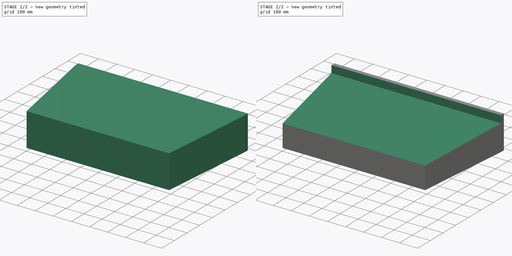
[diagram: build sequence overview — one tinted view per stage of 2, left to right]
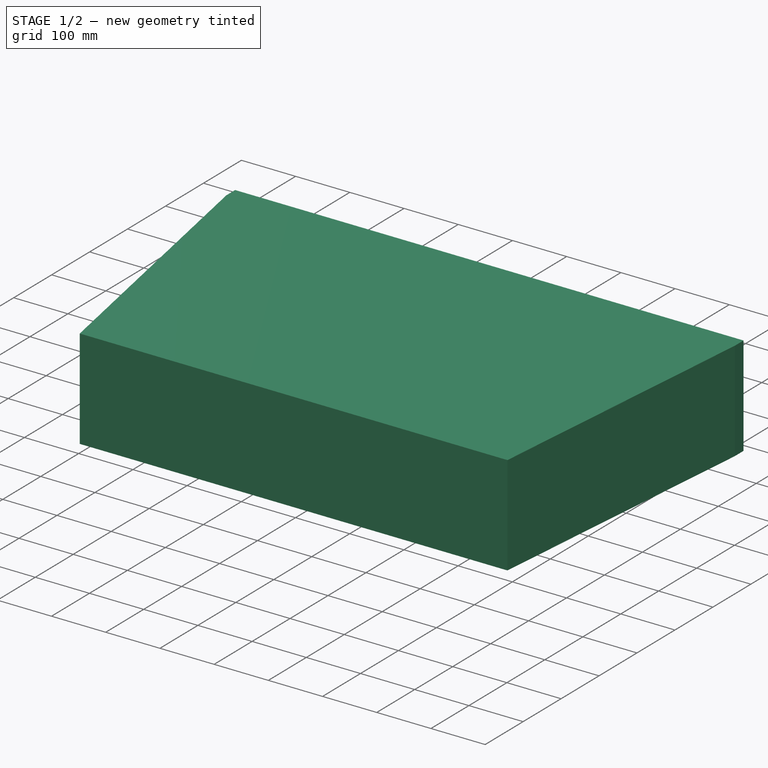
[diagram: stage 1 of 2 — iso view after this stage's code; geometry added in this stage tinted green]
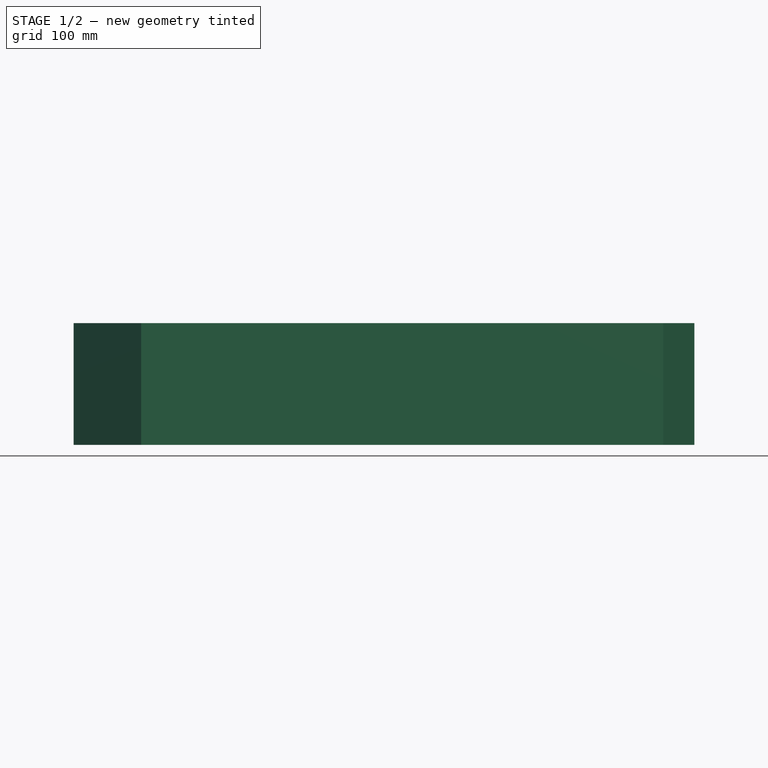
[diagram: stage 1 of 2 — front view after this stage's code; geometry added in this stage tinted green]
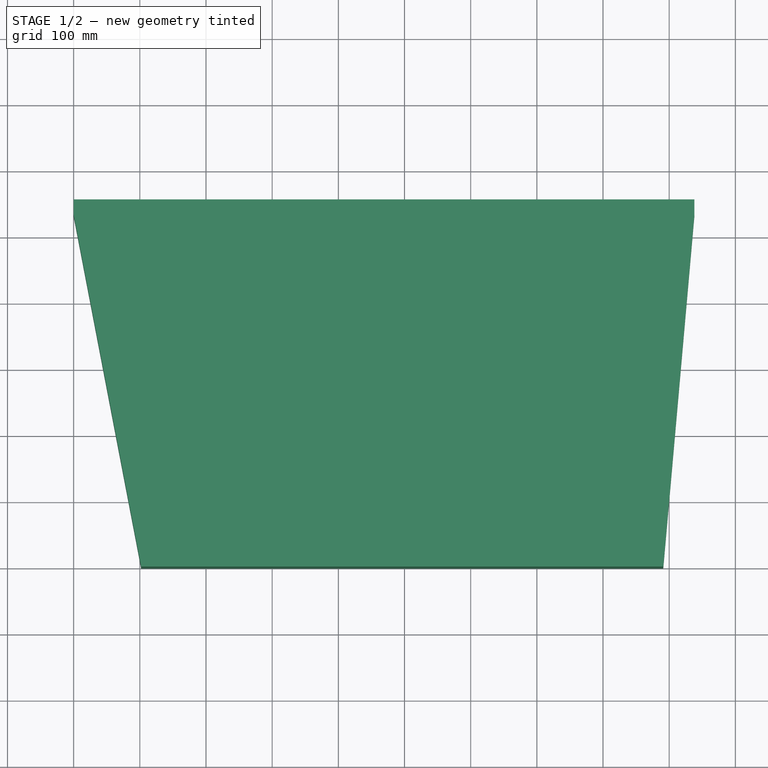
[diagram: stage 1 of 2 — top view after this stage's code; geometry added in this stage tinted green]
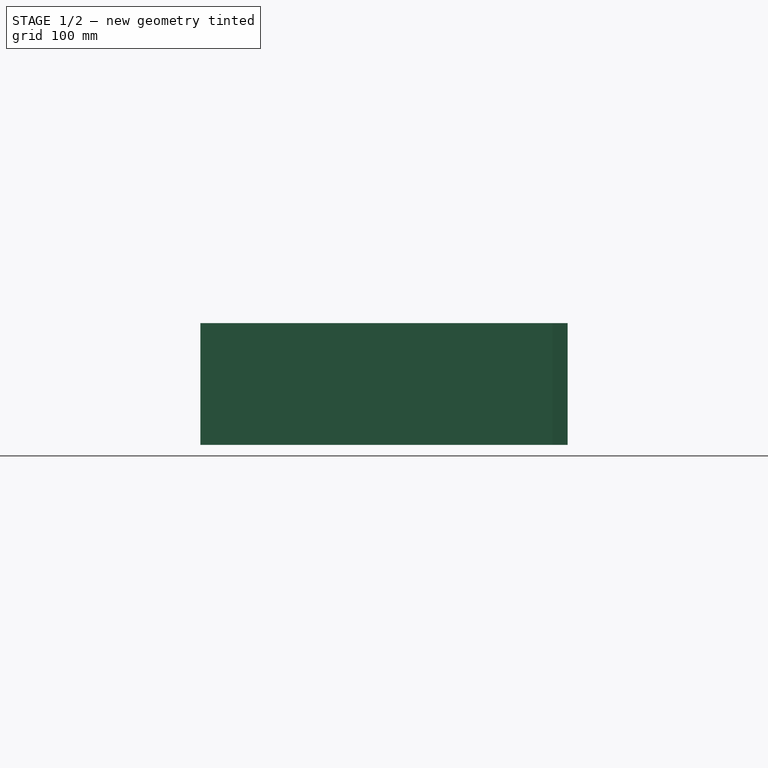
[diagram: stage 1 of 2 — right view after this stage's code; geometry added in this stage tinted green]
FCSTD DOCUMENT  (FreeCAD 0.20R29603 (Git))
Label: pedalier
License: Public Domain
LicenseURL: http://en.wikipedia.org/wiki/Public_domain
objects: Sketcher::SketchObject×2, PartDesign::Pad×1, PartDesign::Pocket×1, PartDesign::Body×1
note: 7 computed .brp shape members not serialized (recipe doc carries the construction recipe); baked Part::Feature solids carry a one-line shape summary decoded from their .brp

FEATURE [Sketcher::SketchObject] Sketch
  FullyConstrained = true
  MapMode = 5
  Support = -> [XY_Plane]
  sketch-geometry (6):
    g0: LineSegment StartX=0 StartY=555 StartZ=0 EndX=938 EndY=555 EndZ=0
    g1: LineSegment StartX=891 StartY=0 StartZ=0 EndX=102 EndY=0 EndZ=0
    g2: LineSegment StartX=0 StartY=555 StartZ=0 EndX=0 EndY=532 EndZ=0
    g3: LineSegment StartX=938 StartY=555 StartZ=0 EndX=938 EndY=532 EndZ=0
    g4: LineSegment StartX=0 StartY=532 StartZ=0 EndX=102 EndY=0 EndZ=0
    g5: LineSegment StartX=891 StartY=0 StartZ=0 EndX=938 EndY=532 EndZ=0
  constraints (18):
    c: PointOnObject(g0,g-2)
    c: Horizontal(g0)
    c: PointOnObject(g1,g-1)
    c: PointOnObject(g1,g-1)
    c: DistanceX(g0,g0) = 938
    c: DistanceX(g1,g1) = 789
    c: DistanceY(g0) = 555
    c: DistanceX(g1,g0) = 47
    c: Coincident(g2,g0)
    c: PointOnObject(g2,g-2)
    c: DistanceY(g2,g2) = 23
    c: Coincident(g3,g0)
    c: Vertical(g3)
    c: Equal(g3,g2)
    c: Coincident(g4,g2)
    c: Coincident(g4,g1)
    c: Coincident(g5,g1)
    c: Coincident(g5,g3)
FEATURE [PartDesign::Pad] Pad
  Direction = (0,0,1)
  Length = 184
  Length2 = 10
  Profile = -> Sketch
  ReferenceAxis = -> Sketch [N_Axis]
  Type = 0
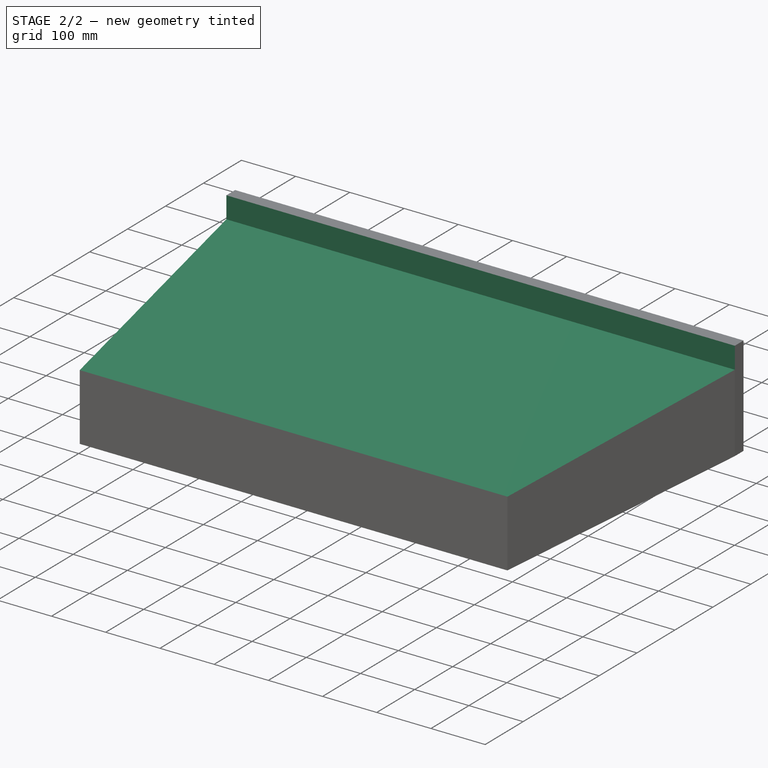
[diagram: stage 2 of 2 — iso view after this stage's code; geometry added in this stage tinted green]
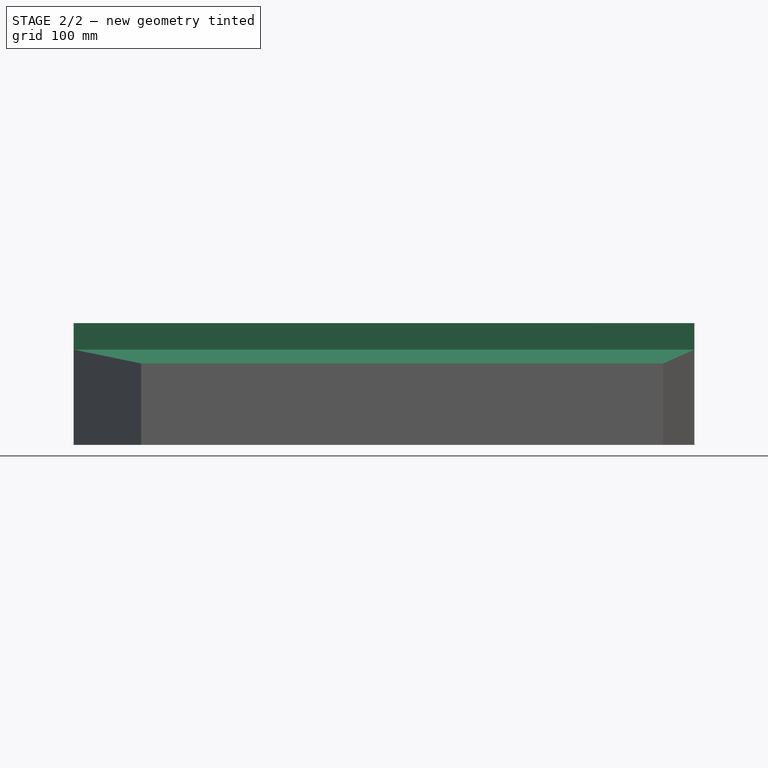
[diagram: stage 2 of 2 — front view after this stage's code; geometry added in this stage tinted green]
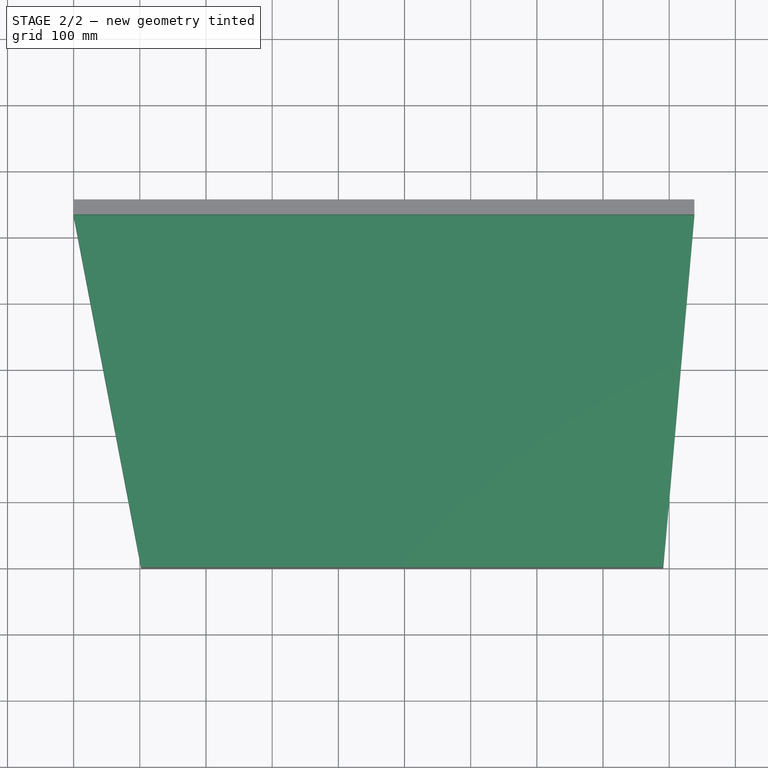
[diagram: stage 2 of 2 — top view after this stage's code; geometry added in this stage tinted green]
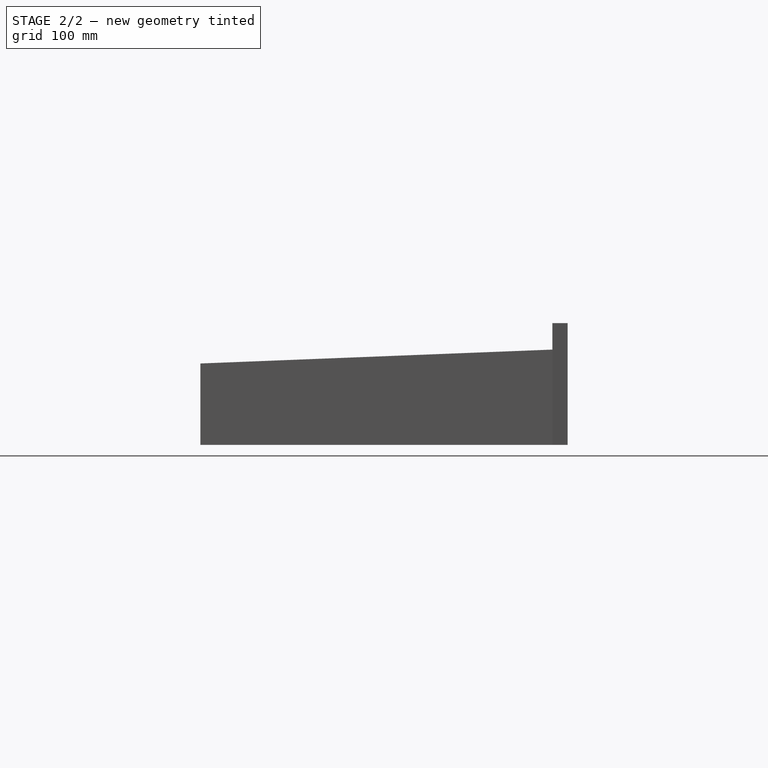
[diagram: stage 2 of 2 — right view after this stage's code; geometry added in this stage tinted green]
FEATURE [Sketcher::SketchObject] Sketch001
  ExternalGeometry = -> [Pad]
  FullyConstrained = true
  MapMode = 5
  Placement = pos=(98.3834,18.863,0) rot=(0.650097,-0.537296,-0.537296;1.9887rad)
  Support = -> [Pad]
  sketch-geometry (4):
    g0: LineSegment StartX=-522.483 StartY=184 StartZ=0 EndX=-522.483 EndY=144 EndZ=0
    g1: LineSegment StartX=-522.483 StartY=184 StartZ=0 EndX=19.2066 EndY=184 EndZ=0
    g2: LineSegment StartX=19.2066 StartY=184 StartZ=0 EndX=19.2066 EndY=123 EndZ=0
    g3: LineSegment StartX=-522.483 StartY=144 StartZ=0 EndX=19.2066 EndY=123 EndZ=0
  constraints (10):
    c: Coincident(g0,g-4)
    c: PointOnObject(g0,g-4)
    c: DistanceY(g0,g0) = 40
    c: Coincident(g1,g0)
    c: Coincident(g1,g-3)
    c: Coincident(g2,g1)
    c: PointOnObject(g2,g-3)
    c: DistanceY(g2) = 123
    c: Coincident(g3,g0)
    c: Coincident(g3,g2)
FEATURE [PartDesign::Pocket] Pocket
  BaseFeature = -> Pad
  Direction = (0.98,0,0)
  Length = 938
  Length2 = 5
  Profile = -> Sketch001
  ReferenceAxis = -> Sketch001 [N_Axis]
  Type = 0
  UseCustomVector = true
FEATURE [PartDesign::Body] Body
  Group = -> [Sketch,Pad,Sketch001,Pocket]
  Origin = -> Origin
  Tip = -> Pocket
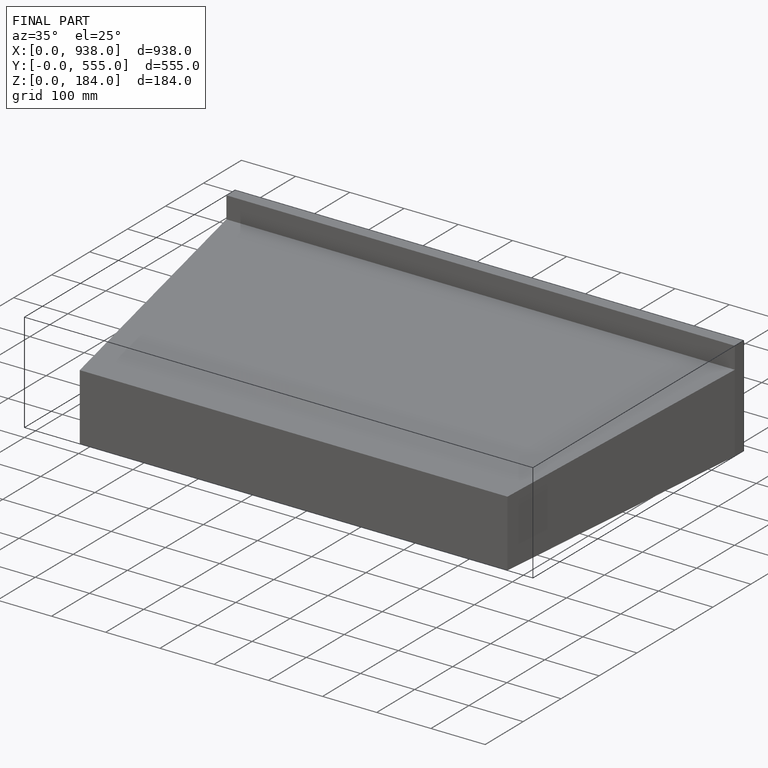
[diagram: finished part — iso view with bounding-box wireframe]
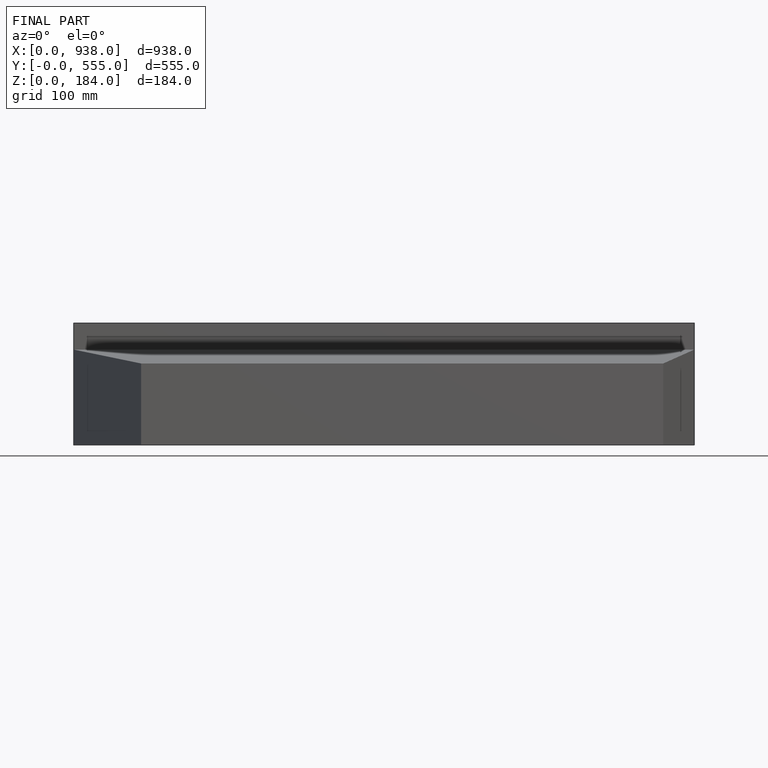
[diagram: finished part — front view with bounding-box wireframe]
